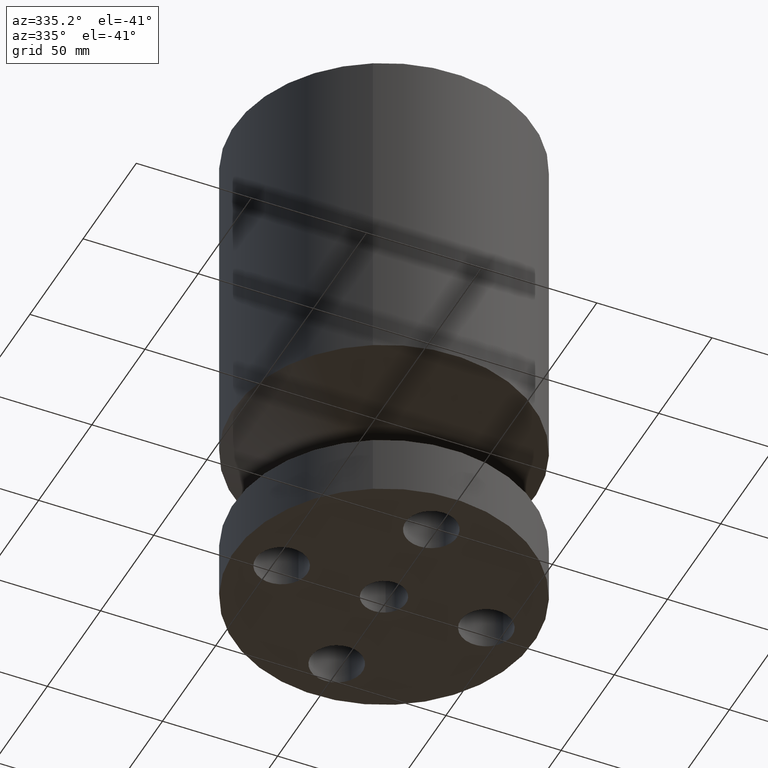
[diagram: clean part render]
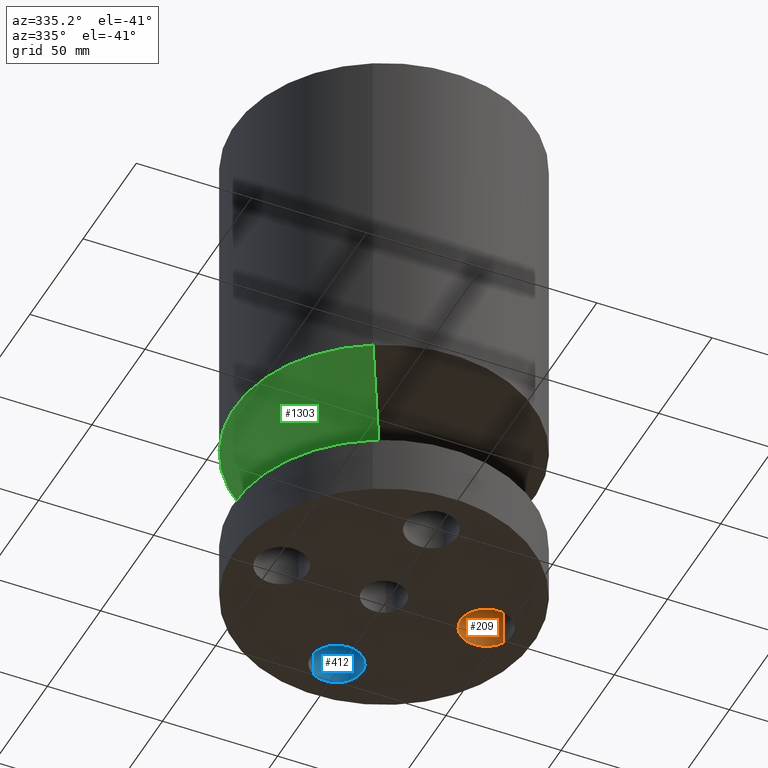
[diagram: same view with three faces highlighted in distinct colors, each labeled with its STEP entity id]
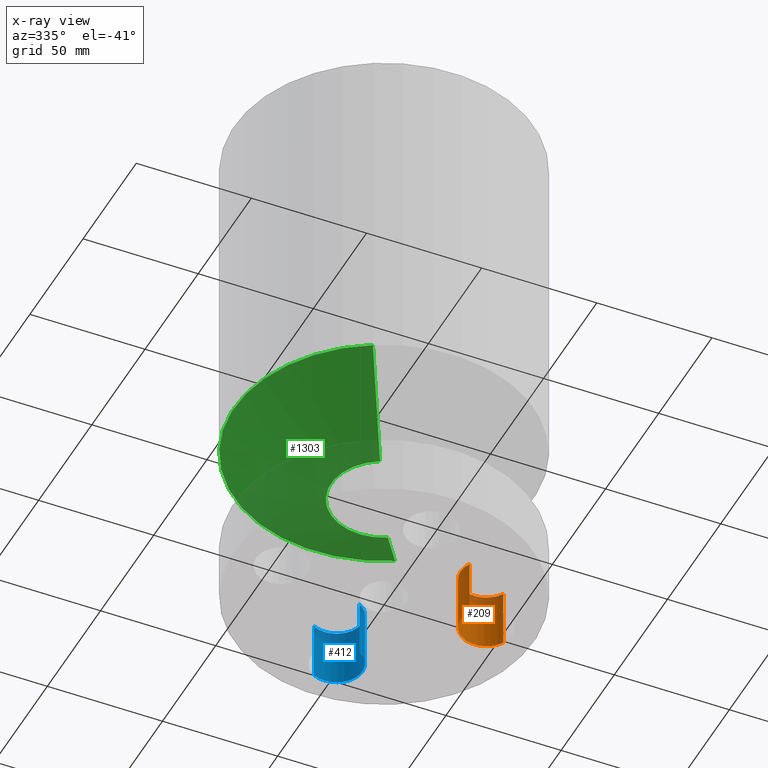
[diagram: x-ray of the same camera — body ghosted, the three highlighted faces saturated]
A machine part, auxiliary view with three faces highlighted in distinct colors.
The next image is the same camera in x-ray (body ghosted, the three faces saturated) — at least one of them is partly hidden behind the body in this view.
Their STEP definitions:

[orange] entity #209 — the highlighted cylindrical surface (edge-blend (fillet) strip) has radius 11.176 mm, axis along (0, -0, 1).
#38=AXIS2_PLACEMENT_3D('Cylinder Axis2P3D',#35,#36,#37) ;
#100=AXIS2_PLACEMENT_3D('Circle Axis2P3D',#98,#99,$) ;
#200=AXIS2_PLACEMENT_3D('Circle Axis2P3D',#198,#199,$) ;
#35=CARTESIAN_POINT('Axis2P3D Location',(1.75000000001,0.,0.00393700787402)) ;
#40=CARTESIAN_POINT('Line Origine',(2.13613632724,0.210947236987,0.500000000002)) ;
#44=CARTESIAN_POINT('Vertex',(2.13613632724,0.210947236987,1.)) ;
#46=CARTESIAN_POINT('Vertex',(2.13613632724,0.210947236987,2.2401153548E-016)) ;
#53=CARTESIAN_POINT('Vertex',(1.36386367277,-0.210947236987,2.2401153548E-016)) ;
#56=CARTESIAN_POINT('Line Origine',(1.36386367277,-0.210947236987,0.500000000002)) ;
#60=CARTESIAN_POINT('Vertex',(1.36386367277,-0.210947236987,1.)) ;
#98=CARTESIAN_POINT('Axis2P3D Location',(1.75000000001,0.,1.)) ;
#198=CARTESIAN_POINT('Axis2P3D Location',(1.75000000001,0.,0.)) ;
#36=DIRECTION('Axis2P3D Direction',(0.,-0.,0.0393700787402)) ;
#37=DIRECTION('Axis2P3D XDirection',(0.0345504945626,0.0188750212049,0.)) ;
#41=DIRECTION('Vector Direction',(0.,0.,0.0393700787402)) ;
#57=DIRECTION('Vector Direction',(0.,0.,0.0393700787402)) ;
#99=DIRECTION('Axis2P3D Direction',(0.,0.,-0.0393700787402)) ;
#199=DIRECTION('Axis2P3D Direction',(0.,-0.,0.0393700787402)) ;
#42=VECTOR('Line Direction',#41,0.0393700787402) ;
#58=VECTOR('Line Direction',#57,0.0393700787402) ;
#204=ORIENTED_EDGE('',*,*,#62,.T.) ;
#205=ORIENTED_EDGE('',*,*,#202,.T.) ;
#206=ORIENTED_EDGE('',*,*,#48,.F.) ;
#207=ORIENTED_EDGE('',*,*,#102,.F.) ;
#209=ADVANCED_FACE('PartBody',(#208),#39,.F.) ;
#101=CIRCLE('generated circle',#100,0.440000000002) ;
#201=CIRCLE('generated circle',#200,0.440000000002) ;
#39=CYLINDRICAL_SURFACE('generated cylinder',#38,0.440000000002) ;
#48=EDGE_CURVE('',#45,#47,#43,.F.) ;
#62=EDGE_CURVE('',#61,#54,#59,.F.) ;
#102=EDGE_CURVE('',#61,#45,#101,.T.) ;
#202=EDGE_CURVE('',#54,#47,#201,.F.) ;
#203=EDGE_LOOP('',(#204,#205,#206,#207)) ;
#208=FACE_OUTER_BOUND('',#203,.T.) ;
#43=LINE('Line',#40,#42) ;
#59=LINE('Line',#56,#58) ;
#45=VERTEX_POINT('',#44) ;
#47=VERTEX_POINT('',#46) ;
#54=VERTEX_POINT('',#53) ;
#61=VERTEX_POINT('',#60) ;

[blue] entity #412 — the highlighted cylindrical surface (edge-blend (fillet) strip) has radius 11.176 mm, axis along (0, 0, 1).
#172=AXIS2_PLACEMENT_3D('Circle Axis2P3D',#170,#171,$) ;
#385=AXIS2_PLACEMENT_3D('Cylinder Axis2P3D',#382,#383,#384) ;
#396=AXIS2_PLACEMENT_3D('Circle Axis2P3D',#394,#395,$) ;
#165=CARTESIAN_POINT('Vertex',(0.210947236987,1.36386367277,1.)) ;
#167=CARTESIAN_POINT('Vertex',(-0.210947236987,2.13613632724,1.)) ;
#170=CARTESIAN_POINT('Axis2P3D Location',(-4.89547160465E-016,1.75000000001,1.)) ;
#382=CARTESIAN_POINT('Axis2P3D Location',(-3.21469784777E-016,1.75000000001,0.00393700787402)) ;
#387=CARTESIAN_POINT('Line Origine',(-0.210947236987,2.13613632724,0.500000000002)) ;
#391=CARTESIAN_POINT('Vertex',(-0.210947236987,2.13613632724,2.2401153548E-016)) ;
#394=CARTESIAN_POINT('Axis2P3D Location',(-3.21469784777E-016,1.75000000001,0.)) ;
#398=CARTESIAN_POINT('Vertex',(0.210947236987,1.36386367277,2.2401153548E-016)) ;
#401=CARTESIAN_POINT('Line Origine',(0.210947236987,1.36386367277,0.500000000002)) ;
#171=DIRECTION('Axis2P3D Direction',(0.,0.,-0.0393700787402)) ;
#383=DIRECTION('Axis2P3D Direction',(0.,0.,0.0393700787402)) ;
#384=DIRECTION('Axis2P3D XDirection',(-0.0188750212049,0.0345504945626,0.)) ;
#388=DIRECTION('Vector Direction',(0.,0.,0.0393700787402)) ;
#395=DIRECTION('Axis2P3D Direction',(0.,0.,0.0393700787402)) ;
#402=DIRECTION('Vector Direction',(0.,0.,0.0393700787402)) ;
#389=VECTOR('Line Direction',#388,0.0393700787402) ;
#403=VECTOR('Line Direction',#402,0.0393700787402) ;
#407=ORIENTED_EDGE('',*,*,#393,.T.) ;
#408=ORIENTED_EDGE('',*,*,#400,.T.) ;
#409=ORIENTED_EDGE('',*,*,#405,.F.) ;
#410=ORIENTED_EDGE('',*,*,#174,.F.) ;
#412=ADVANCED_FACE('PartBody',(#411),#386,.F.) ;
#173=CIRCLE('generated circle',#172,0.440000000002) ;
#397=CIRCLE('generated circle',#396,0.440000000002) ;
#386=CYLINDRICAL_SURFACE('generated cylinder',#385,0.440000000002) ;
#174=EDGE_CURVE('',#168,#166,#173,.T.) ;
#393=EDGE_CURVE('',#168,#392,#390,.F.) ;
#400=EDGE_CURVE('',#392,#399,#397,.F.) ;
#405=EDGE_CURVE('',#166,#399,#404,.F.) ;
#406=EDGE_LOOP('',(#407,#408,#409,#410)) ;
#411=FACE_OUTER_BOUND('',#406,.T.) ;
#390=LINE('Line',#387,#389) ;
#404=LINE('Line',#401,#403) ;
#166=VERTEX_POINT('',#165) ;
#168=VERTEX_POINT('',#167) ;
#392=VERTEX_POINT('',#391) ;
#399=VERTEX_POINT('',#398) ;

[green] entity #1303 — the highlighted conical surface has half-angle 60 deg.
#738=AXIS2_PLACEMENT_3D('Circle Axis2P3D',#736,#737,$) ;
#1264=AXIS2_PLACEMENT_3D('Cone Axis2P3D',#1261,#1262,#1263) ;
#1294=AXIS2_PLACEMENT_3D('Circle Axis2P3D',#1292,#1293,$) ;
#714=CARTESIAN_POINT('Vertex',(0.433880112439,0.794212218514,2.00000000001)) ;
#721=CARTESIAN_POINT('Vertex',(-0.433880112439,-0.794212218514,2.00000000001)) ;
#736=CARTESIAN_POINT('Axis2P3D Location',(0.,0.,2.00000000001)) ;
#1261=CARTESIAN_POINT('Axis2P3D Location',(0.,0.,2.00000000001)) ;
#1266=CARTESIAN_POINT('Line Origine',(0.830604745635,1.52041178848,2.47775734776)) ;
#1270=CARTESIAN_POINT('Vertex',(1.22732937883,2.24661135845,2.95551469552)) ;
#1277=CARTESIAN_POINT('Vertex',(-1.22732937883,-2.24661135845,2.95551469552)) ;
#1280=CARTESIAN_POINT('Line Origine',(-0.830604745635,-1.52041178848,2.47775734776)) ;
#1292=CARTESIAN_POINT('Axis2P3D Location',(0.,0.,2.95551469552)) ;
#737=DIRECTION('Axis2P3D Direction',(0.,0.,-0.0393700787402)) ;
#1262=DIRECTION('Axis2P3D Direction',(-0.,-0.,0.0393700787402)) ;
#1263=DIRECTION('Axis2P3D XDirection',(0.0188750212049,0.0345504945626,0.)) ;
#1267=DIRECTION('Vector Direction',(0.0163462478604,0.0299216060045,0.0196850393701)) ;
#1281=DIRECTION('Vector Direction',(-0.0163462478604,-0.0299216060045,0.0196850393701)) ;
#1293=DIRECTION('Axis2P3D Direction',(-0.,0.,0.0393700787402)) ;
#1268=VECTOR('Line Direction',#1267,0.0393700787402) ;
#1282=VECTOR('Line Direction',#1281,0.0393700787402) ;
#1298=ORIENTED_EDGE('',*,*,#740,.F.) ;
#1299=ORIENTED_EDGE('',*,*,#1284,.T.) ;
#1300=ORIENTED_EDGE('',*,*,#1296,.T.) ;
#1301=ORIENTED_EDGE('',*,*,#1272,.F.) ;
#1303=ADVANCED_FACE('PartBody',(#1302),#1265,.T.) ;
#739=CIRCLE('generated circle',#738,0.905000000004) ;
#1295=CIRCLE('generated circle',#1294,2.56000000001) ;
#1265=CONICAL_SURFACE('Cone',#1264,0.905000000004,1.0471975512) ;
#740=EDGE_CURVE('',#722,#715,#739,.T.) ;
#1272=EDGE_CURVE('',#715,#1271,#1269,.T.) ;
#1284=EDGE_CURVE('',#722,#1278,#1283,.T.) ;
#1296=EDGE_CURVE('',#1278,#1271,#1295,.F.) ;
#1297=EDGE_LOOP('',(#1298,#1299,#1300,#1301)) ;
#1302=FACE_OUTER_BOUND('',#1297,.T.) ;
#1269=LINE('Line',#1266,#1268) ;
#1283=LINE('Line',#1280,#1282) ;
#715=VERTEX_POINT('',#714) ;
#722=VERTEX_POINT('',#721) ;
#1271=VERTEX_POINT('',#1270) ;
#1278=VERTEX_POINT('',#1277) ;